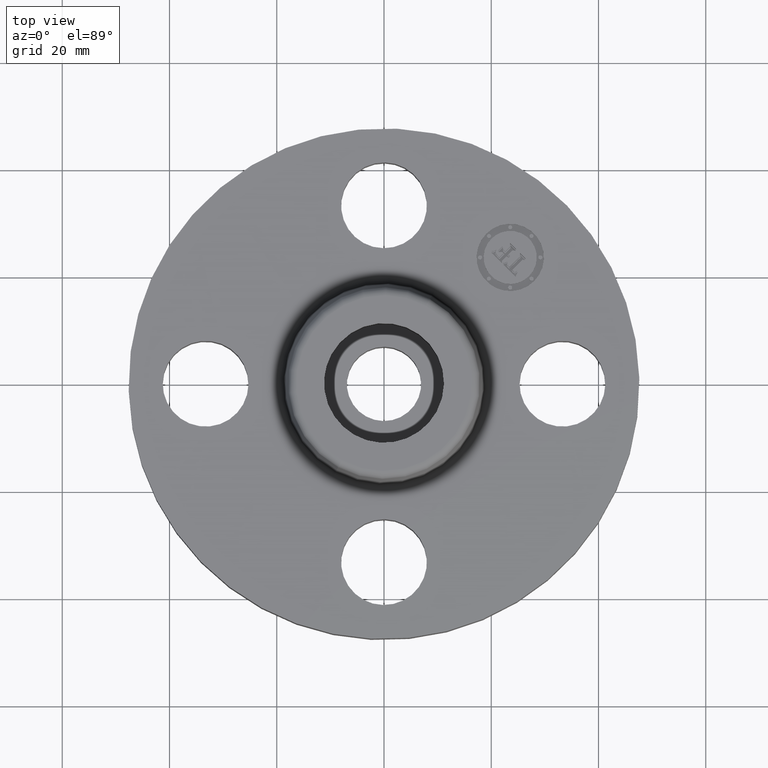
[diagram: clean part render]
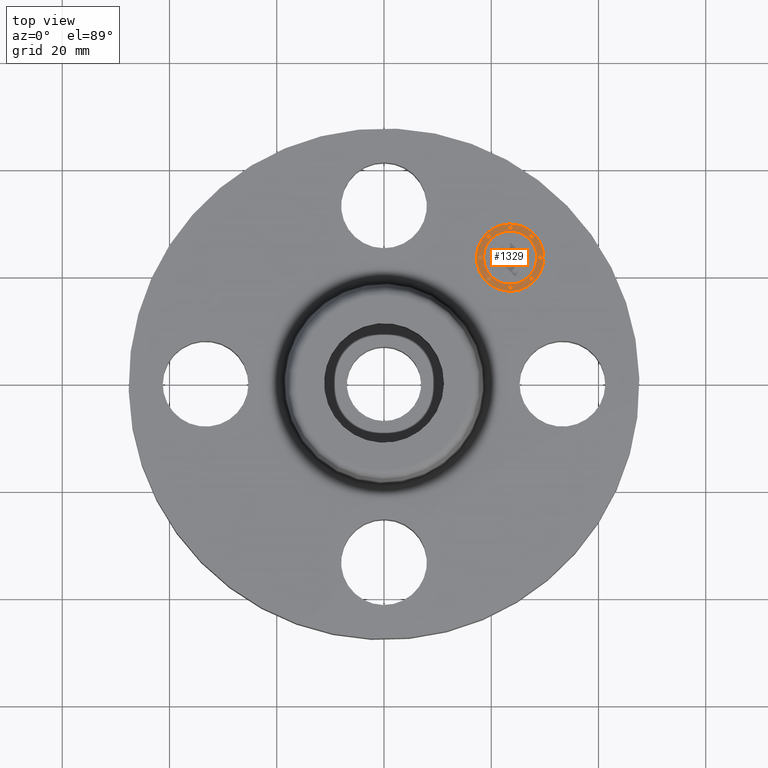
[diagram: same view with one face highlighted and labeled with its STEP entity id]
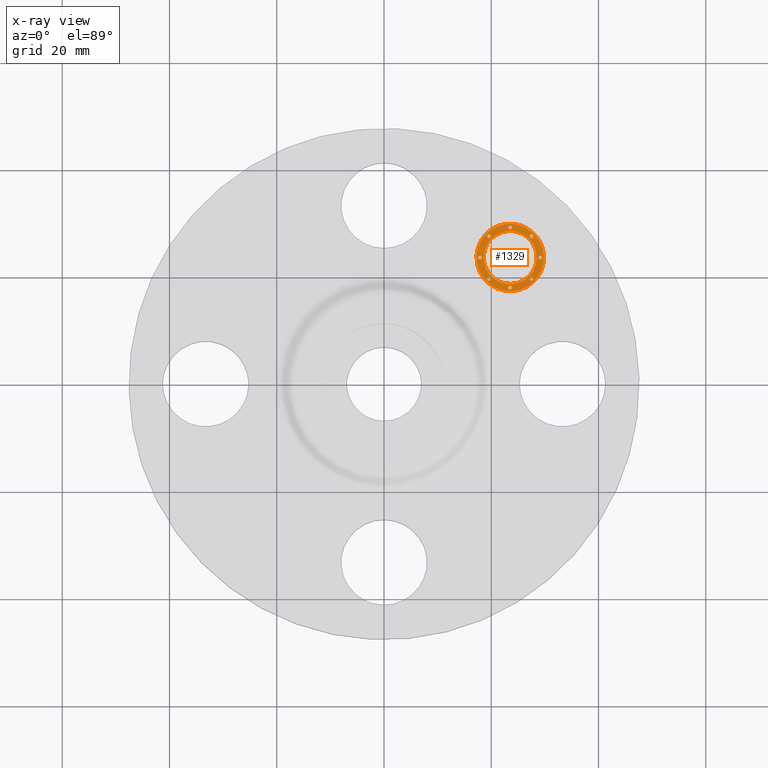
[diagram: x-ray of the same camera — body ghosted, the highlighted face saturated]
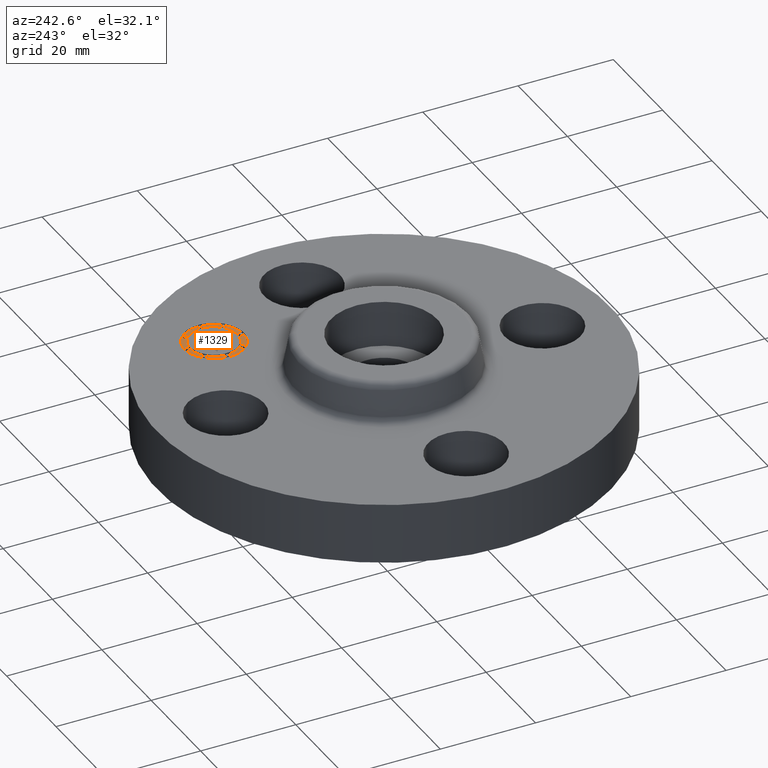
[diagram: same view with one face highlighted and labeled with its STEP entity id]
A machine part, top view. The second image highlights one B-rep face of the part: STEP entity #1329.
The next image is the same camera in x-ray: the body ghosted, the highlighted face saturated — about 0% of this face is hidden behind the body in this view.
A second angle (auxiliary view) of the same face is appended — the face is thin or edge-on in the first view.
In plain terms, the highlighted planar face has unit normal (0, -0, 1).
Its self-contained STEP definition (entity closure, byte-faithful):
#1141=AXIS2_PLACEMENT_3D('Circle Axis2P3D',#1139,#1140,$) ;
#1161=AXIS2_PLACEMENT_3D('Plane Axis2P3D',#1158,#1159,#1160) ;
#1169=AXIS2_PLACEMENT_3D('Circle Axis2P3D',#1167,#1168,$) ;
#1178=AXIS2_PLACEMENT_3D('Circle Axis2P3D',#1176,#1177,$) ;
#1187=AXIS2_PLACEMENT_3D('Circle Axis2P3D',#1185,#1186,$) ;
#1196=AXIS2_PLACEMENT_3D('Circle Axis2P3D',#1194,#1195,$) ;
#1205=AXIS2_PLACEMENT_3D('Circle Axis2P3D',#1203,#1204,$) ;
#1214=AXIS2_PLACEMENT_3D('Circle Axis2P3D',#1212,#1213,$) ;
#1223=AXIS2_PLACEMENT_3D('Circle Axis2P3D',#1221,#1222,$) ;
#1232=AXIS2_PLACEMENT_3D('Circle Axis2P3D',#1230,#1231,$) ;
#1241=AXIS2_PLACEMENT_3D('Circle Axis2P3D',#1239,#1240,$) ;
#1250=AXIS2_PLACEMENT_3D('Circle Axis2P3D',#1248,#1249,$) ;
#1259=AXIS2_PLACEMENT_3D('Circle Axis2P3D',#1257,#1258,$) ;
#1268=AXIS2_PLACEMENT_3D('Circle Axis2P3D',#1266,#1267,$) ;
#1277=AXIS2_PLACEMENT_3D('Circle Axis2P3D',#1275,#1276,$) ;
#1286=AXIS2_PLACEMENT_3D('Circle Axis2P3D',#1284,#1285,$) ;
#1295=AXIS2_PLACEMENT_3D('Circle Axis2P3D',#1293,#1294,$) ;
#1304=AXIS2_PLACEMENT_3D('Circle Axis2P3D',#1302,#1303,$) ;
#1313=AXIS2_PLACEMENT_3D('Circle Axis2P3D',#1311,#1312,$) ;
#1322=AXIS2_PLACEMENT_3D('Circle Axis2P3D',#1320,#1321,$) ;
#1092=CARTESIAN_POINT('Vertex',(0.751300955031,1.10131881169,0.485000000002)) ;
#1096=CARTESIAN_POINT('Control Point',(1.1013188117,0.751300955013,0.485000000037)) ;
#1097=CARTESIAN_POINT('Control Point',(1.12880914988,0.778791293192,0.485000000035)) ;
#1098=CARTESIAN_POINT('Control Point',(1.15090177278,0.811679346652,0.485000000033)) ;
#1099=CARTESIAN_POINT('Control Point',(1.1661763612,0.84855546518,0.485000000031)) ;
#1100=CARTESIAN_POINT('Control Point',(1.18144340551,0.926309883357,0.485000000028)) ;
#1101=CARTESIAN_POINT('Control Point',(1.16617636121,1.00406430153,0.485000000024)) ;
#1102=CARTESIAN_POINT('Control Point',(1.15090177278,1.04094042006,0.485000000023)) ;
#1103=CARTESIAN_POINT('Control Point',(1.10671652698,1.10671652698,0.485000000019)) ;
#1104=CARTESIAN_POINT('Control Point',(1.04094042006,1.15090177278,0.485000000016)) ;
#1105=CARTESIAN_POINT('Control Point',(1.00406430154,1.1661763612,0.485000000014)) ;
#1106=CARTESIAN_POINT('Control Point',(0.926309883358,1.18144340551,0.485000000011)) ;
#1107=CARTESIAN_POINT('Control Point',(0.848555465182,1.16617636121,0.485000000007)) ;
#1108=CARTESIAN_POINT('Control Point',(0.811679346653,1.15090177278,0.485000000005)) ;
#1109=CARTESIAN_POINT('Control Point',(0.778791293194,1.12880914988,0.485000000004)) ;
#1110=CARTESIAN_POINT('Control Point',(0.751300955014,1.1013188117,0.485000000002)) ;
#1111=CARTESIAN_POINT('Vertex',(1.10131881169,0.751300955031,0.485000000002)) ;
#1139=CARTESIAN_POINT('Axis2P3D Location',(0.926309883358,0.926309883358,0.485000000037)) ;
#1158=CARTESIAN_POINT('Axis2P3D Location',(0.,0.,0.485000000002)) ;
#1167=CARTESIAN_POINT('Axis2P3D Location',(0.92630988336,0.92630988336,0.485000000002)) ;
#1171=CARTESIAN_POINT('Vertex',(1.06419570568,0.788424061036,0.485000000002)) ;
#1173=CARTESIAN_POINT('Vertex',(0.788424061036,1.06419570568,0.485000000002)) ;
#1176=CARTESIAN_POINT('Axis2P3D Location',(0.92630988336,0.92630988336,0.485000000002)) ;
#1185=CARTESIAN_POINT('Axis2P3D Location',(0.76986250806,0.76986250806,0.485000000002)) ;
#1189=CARTESIAN_POINT('Vertex',(0.780469109701,0.759255906314,0.485000000002)) ;
#1191=CARTESIAN_POINT('Vertex',(0.759255906314,0.780469109701,0.485000000002)) ;
#1194=CARTESIAN_POINT('Axis2P3D Location',(0.769862508008,0.769862508008,0.485000000002)) ;
#1203=CARTESIAN_POINT('Axis2P3D Location',(0.769862508008,1.08275725866,0.485000000002)) ;
#1207=CARTESIAN_POINT('Vertex',(0.780469109753,1.07215065697,0.485000000002)) ;
#1209=CARTESIAN_POINT('Vertex',(0.759255906314,1.09336386041,0.485000000002)) ;
#1212=CARTESIAN_POINT('Axis2P3D Location',(0.76986250806,1.08275725871,0.485000000002)) ;
#1221=CARTESIAN_POINT('Axis2P3D Location',(0.705059883357,0.92630988336,0.485000000002)) ;
#1225=CARTESIAN_POINT('Vertex',(0.71566648505,0.915703281667,0.485000000002)) ;
#1227=CARTESIAN_POINT('Vertex',(0.694453281663,0.936916485054,0.485000000002)) ;
#1230=CARTESIAN_POINT('Axis2P3D Location',(0.705059883357,0.92630988336,0.485000000002)) ;
#1239=CARTESIAN_POINT('Axis2P3D Location',(1.08275725871,1.08275725871,0.485000000002)) ;
#1243=CARTESIAN_POINT('Vertex',(1.09336386041,1.07215065702,0.485000000002)) ;
#1245=CARTESIAN_POINT('Vertex',(1.07215065702,1.09336386041,0.485000000002)) ;
#1248=CARTESIAN_POINT('Axis2P3D Location',(1.08275725866,1.08275725866,0.485000000002)) ;
#1257=CARTESIAN_POINT('Axis2P3D Location',(0.92630988336,1.14755988336,0.485000000002)) ;
#1261=CARTESIAN_POINT('Vertex',(0.936916485054,1.13695328167,0.485000000002)) ;
#1263=CARTESIAN_POINT('Vertex',(0.915703281667,1.15816648506,0.485000000002)) ;
#1266=CARTESIAN_POINT('Axis2P3D Location',(0.926309883308,1.14755988331,0.485000000002)) ;
#1275=CARTESIAN_POINT('Axis2P3D Location',(1.08275725871,0.76986250806,0.485000000002)) ;
#1279=CARTESIAN_POINT('Vertex',(1.07215065697,0.780469109753,0.485000000002)) ;
#1281=CARTESIAN_POINT('Vertex',(1.09336386041,0.759255906314,0.485000000002)) ;
#1284=CARTESIAN_POINT('Axis2P3D Location',(1.08275725866,0.769862508008,0.485000000002)) ;
#1293=CARTESIAN_POINT('Axis2P3D Location',(0.92630988336,0.705059883357,0.485000000002)) ;
#1297=CARTESIAN_POINT('Vertex',(0.915703281667,0.71566648505,0.485000000002)) ;
#1299=CARTESIAN_POINT('Vertex',(0.936916485054,0.694453281663,0.485000000002)) ;
#1302=CARTESIAN_POINT('Axis2P3D Location',(0.92630988336,0.705059883357,0.485000000002)) ;
#1311=CARTESIAN_POINT('Axis2P3D Location',(1.14755988331,0.926309883308,0.485000000002)) ;
#1315=CARTESIAN_POINT('Vertex',(1.13695328167,0.936916485054,0.485000000002)) ;
#1317=CARTESIAN_POINT('Vertex',(1.15816648506,0.915703281667,0.485000000002)) ;
#1320=CARTESIAN_POINT('Axis2P3D Location',(1.14755988336,0.92630988336,0.485000000002)) ;
#1140=DIRECTION('Axis2P3D Direction',(-0.,0.,0.0393700787402)) ;
#1159=DIRECTION('Axis2P3D Direction',(0.,-0.,0.0393700787402)) ;
#1160=DIRECTION('Axis2P3D XDirection',(0.027838849653,0.027838849653,0.)) ;
#1168=DIRECTION('Axis2P3D Direction',(0.,-0.,0.0393700787402)) ;
#1177=DIRECTION('Axis2P3D Direction',(0.,-0.,0.0393700787402)) ;
#1186=DIRECTION('Axis2P3D Direction',(0.,-0.,0.0393700787402)) ;
#1195=DIRECTION('Axis2P3D Direction',(0.,-0.,0.0393700787402)) ;
#1204=DIRECTION('Axis2P3D Direction',(0.,-0.,0.0393700787402)) ;
#1213=DIRECTION('Axis2P3D Direction',(0.,-0.,0.0393700787402)) ;
#1222=DIRECTION('Axis2P3D Direction',(0.,-0.,0.0393700787402)) ;
#1231=DIRECTION('Axis2P3D Direction',(0.,-0.,0.0393700787402)) ;
#1240=DIRECTION('Axis2P3D Direction',(0.,-0.,0.0393700787402)) ;
#1249=DIRECTION('Axis2P3D Direction',(0.,-0.,0.0393700787402)) ;
#1258=DIRECTION('Axis2P3D Direction',(0.,-0.,0.0393700787402)) ;
#1267=DIRECTION('Axis2P3D Direction',(0.,-0.,0.0393700787402)) ;
#1276=DIRECTION('Axis2P3D Direction',(0.,-0.,0.0393700787402)) ;
#1285=DIRECTION('Axis2P3D Direction',(0.,-0.,0.0393700787402)) ;
#1294=DIRECTION('Axis2P3D Direction',(0.,-0.,0.0393700787402)) ;
#1303=DIRECTION('Axis2P3D Direction',(0.,-0.,0.0393700787402)) ;
#1312=DIRECTION('Axis2P3D Direction',(0.,-0.,0.0393700787402)) ;
#1321=DIRECTION('Axis2P3D Direction',(0.,-0.,0.0393700787402)) ;
#1164=ORIENTED_EDGE('',*,*,#1143,.T.) ;
#1165=ORIENTED_EDGE('',*,*,#1113,.T.) ;
#1182=ORIENTED_EDGE('',*,*,#1175,.F.) ;
#1183=ORIENTED_EDGE('',*,*,#1180,.F.) ;
#1200=ORIENTED_EDGE('',*,*,#1193,.F.) ;
#1201=ORIENTED_EDGE('',*,*,#1198,.F.) ;
#1218=ORIENTED_EDGE('',*,*,#1211,.F.) ;
#1219=ORIENTED_EDGE('',*,*,#1216,.F.) ;
#1236=ORIENTED_EDGE('',*,*,#1229,.F.) ;
#1237=ORIENTED_EDGE('',*,*,#1234,.F.) ;
#1254=ORIENTED_EDGE('',*,*,#1247,.F.) ;
#1255=ORIENTED_EDGE('',*,*,#1252,.F.) ;
#1272=ORIENTED_EDGE('',*,*,#1265,.F.) ;
#1273=ORIENTED_EDGE('',*,*,#1270,.F.) ;
#1290=ORIENTED_EDGE('',*,*,#1283,.F.) ;
#1291=ORIENTED_EDGE('',*,*,#1288,.F.) ;
#1308=ORIENTED_EDGE('',*,*,#1301,.F.) ;
#1309=ORIENTED_EDGE('',*,*,#1306,.F.) ;
#1326=ORIENTED_EDGE('',*,*,#1319,.F.) ;
#1327=ORIENTED_EDGE('',*,*,#1324,.F.) ;
#1184=FACE_BOUND('',#1181,.T.) ;
#1202=FACE_BOUND('',#1199,.T.) ;
#1220=FACE_BOUND('',#1217,.T.) ;
#1238=FACE_BOUND('',#1235,.T.) ;
#1256=FACE_BOUND('',#1253,.T.) ;
#1274=FACE_BOUND('',#1271,.T.) ;
#1292=FACE_BOUND('',#1289,.T.) ;
#1310=FACE_BOUND('',#1307,.T.) ;
#1328=FACE_BOUND('',#1325,.T.) ;
#1329=ADVANCED_FACE('PartBody',(#1166,#1184,#1202,#1220,#1238,#1256,#1274,#1292,#1310,#1328),#1162,.T.) ;
#1095=B_SPLINE_CURVE_WITH_KNOTS('',5,(#1096,#1097,#1098,#1099,#1100,#1101,#1102,#1103,#1104,#1105,#1106,#1107,#1108,#1109,#1110),.UNSPECIFIED.,.F.,.U.,(6,3,3,3,6),(-9.87481110845,-4.93740555423,0.,4.93740555423,9.87481110845),.UNSPECIFIED.) ;
#1142=CIRCLE('generated circle',#1141,0.247500000001) ;
#1170=CIRCLE('generated circle',#1169,0.19499999999) ;
#1179=CIRCLE('generated circle',#1178,0.19499999999) ;
#1188=CIRCLE('generated circle',#1187,0.0149999999654) ;
#1197=CIRCLE('generated circle',#1196,0.0149999999654) ;
#1206=CIRCLE('generated circle',#1205,0.0150000000021) ;
#1215=CIRCLE('generated circle',#1214,0.0150000000021) ;
#1224=CIRCLE('generated circle',#1223,0.0149999999654) ;
#1233=CIRCLE('generated circle',#1232,0.0149999999654) ;
#1242=CIRCLE('generated circle',#1241,0.0149999999654) ;
#1251=CIRCLE('generated circle',#1250,0.0149999999654) ;
#1260=CIRCLE('generated circle',#1259,0.0149999999654) ;
#1269=CIRCLE('generated circle',#1268,0.0149999999654) ;
#1278=CIRCLE('generated circle',#1277,0.0150000000021) ;
#1287=CIRCLE('generated circle',#1286,0.0150000000021) ;
#1296=CIRCLE('generated circle',#1295,0.0149999999654) ;
#1305=CIRCLE('generated circle',#1304,0.0149999999654) ;
#1314=CIRCLE('generated circle',#1313,0.0149999999654) ;
#1323=CIRCLE('generated circle',#1322,0.0149999999654) ;
#1113=EDGE_CURVE('',#1112,#1093,#1095,.T.) ;
#1143=EDGE_CURVE('',#1093,#1112,#1142,.T.) ;
#1175=EDGE_CURVE('',#1172,#1174,#1170,.T.) ;
#1180=EDGE_CURVE('',#1174,#1172,#1179,.T.) ;
#1193=EDGE_CURVE('',#1190,#1192,#1188,.T.) ;
#1198=EDGE_CURVE('',#1192,#1190,#1197,.T.) ;
#1211=EDGE_CURVE('',#1208,#1210,#1206,.T.) ;
#1216=EDGE_CURVE('',#1210,#1208,#1215,.T.) ;
#1229=EDGE_CURVE('',#1226,#1228,#1224,.T.) ;
#1234=EDGE_CURVE('',#1228,#1226,#1233,.T.) ;
#1247=EDGE_CURVE('',#1244,#1246,#1242,.T.) ;
#1252=EDGE_CURVE('',#1246,#1244,#1251,.T.) ;
#1265=EDGE_CURVE('',#1262,#1264,#1260,.T.) ;
#1270=EDGE_CURVE('',#1264,#1262,#1269,.T.) ;
#1283=EDGE_CURVE('',#1280,#1282,#1278,.T.) ;
#1288=EDGE_CURVE('',#1282,#1280,#1287,.T.) ;
#1301=EDGE_CURVE('',#1298,#1300,#1296,.T.) ;
#1306=EDGE_CURVE('',#1300,#1298,#1305,.T.) ;
#1319=EDGE_CURVE('',#1316,#1318,#1314,.T.) ;
#1324=EDGE_CURVE('',#1318,#1316,#1323,.T.) ;
#1163=EDGE_LOOP('',(#1164,#1165)) ;
#1181=EDGE_LOOP('',(#1182,#1183)) ;
#1199=EDGE_LOOP('',(#1200,#1201)) ;
#1217=EDGE_LOOP('',(#1218,#1219)) ;
#1235=EDGE_LOOP('',(#1236,#1237)) ;
#1253=EDGE_LOOP('',(#1254,#1255)) ;
#1271=EDGE_LOOP('',(#1272,#1273)) ;
#1289=EDGE_LOOP('',(#1290,#1291)) ;
#1307=EDGE_LOOP('',(#1308,#1309)) ;
#1325=EDGE_LOOP('',(#1326,#1327)) ;
#1166=FACE_OUTER_BOUND('',#1163,.T.) ;
#1162=PLANE('',#1161) ;
#1093=VERTEX_POINT('',#1092) ;
#1112=VERTEX_POINT('',#1111) ;
#1172=VERTEX_POINT('',#1171) ;
#1174=VERTEX_POINT('',#1173) ;
#1190=VERTEX_POINT('',#1189) ;
#1192=VERTEX_POINT('',#1191) ;
#1208=VERTEX_POINT('',#1207) ;
#1210=VERTEX_POINT('',#1209) ;
#1226=VERTEX_POINT('',#1225) ;
#1228=VERTEX_POINT('',#1227) ;
#1244=VERTEX_POINT('',#1243) ;
#1246=VERTEX_POINT('',#1245) ;
#1262=VERTEX_POINT('',#1261) ;
#1264=VERTEX_POINT('',#1263) ;
#1280=VERTEX_POINT('',#1279) ;
#1282=VERTEX_POINT('',#1281) ;
#1298=VERTEX_POINT('',#1297) ;
#1300=VERTEX_POINT('',#1299) ;
#1316=VERTEX_POINT('',#1315) ;
#1318=VERTEX_POINT('',#1317) ;